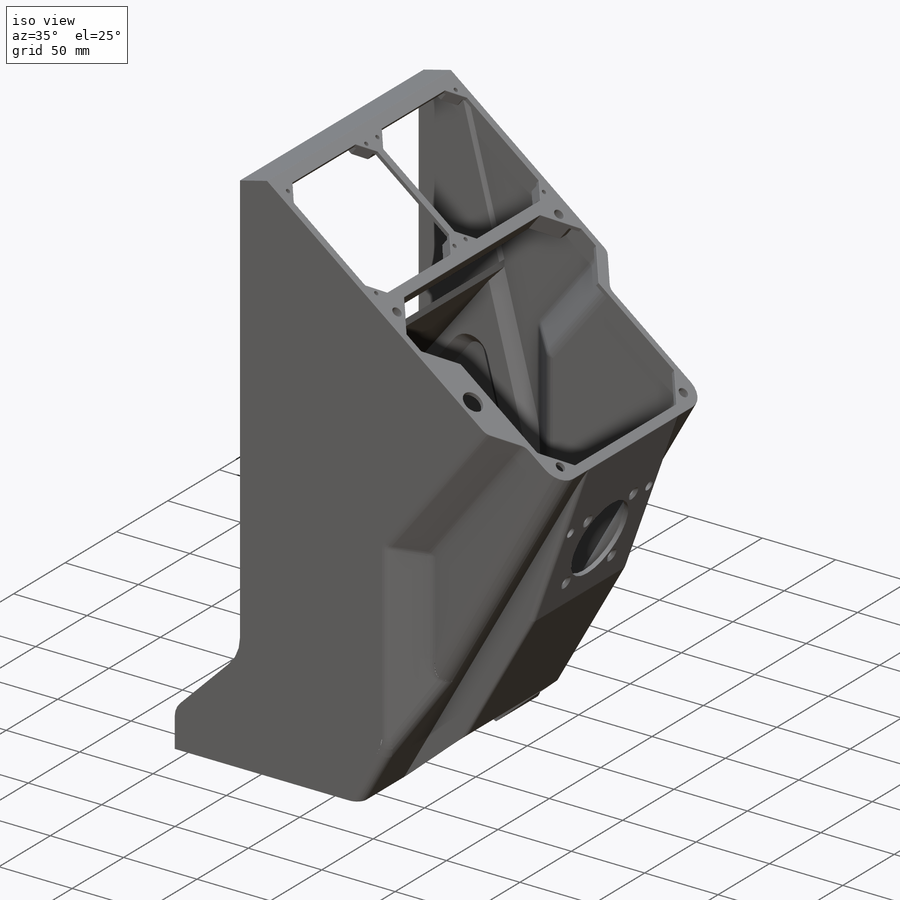
[diagram: iso view]
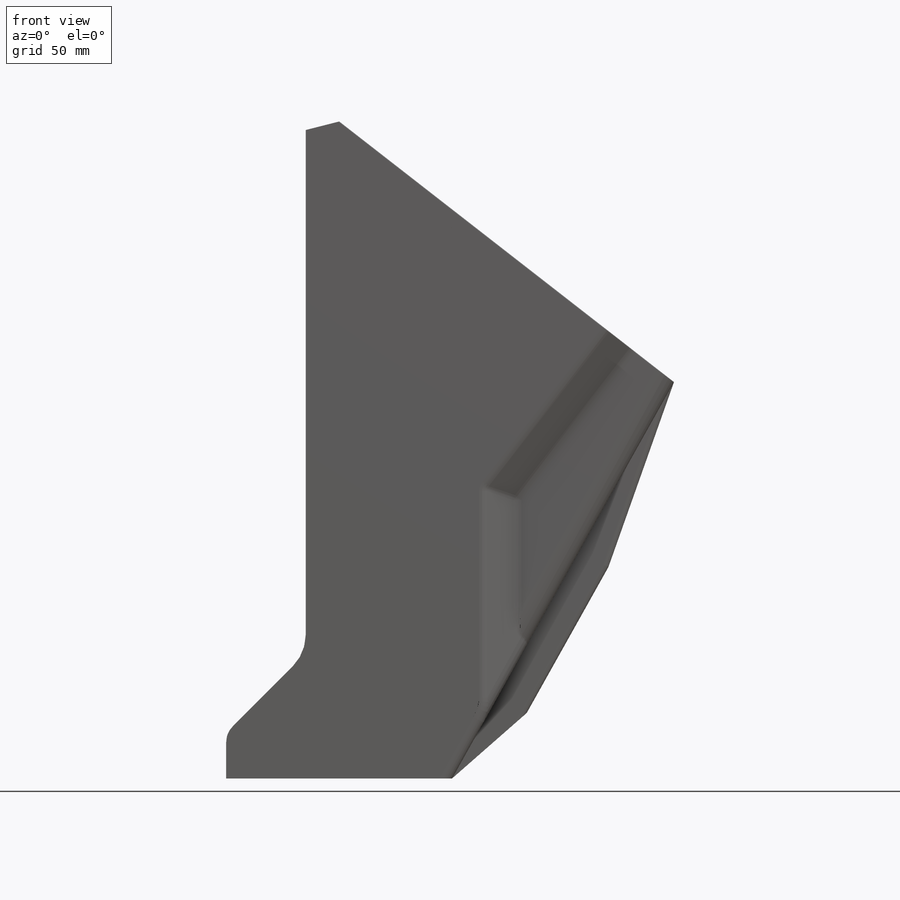
[diagram: front view]
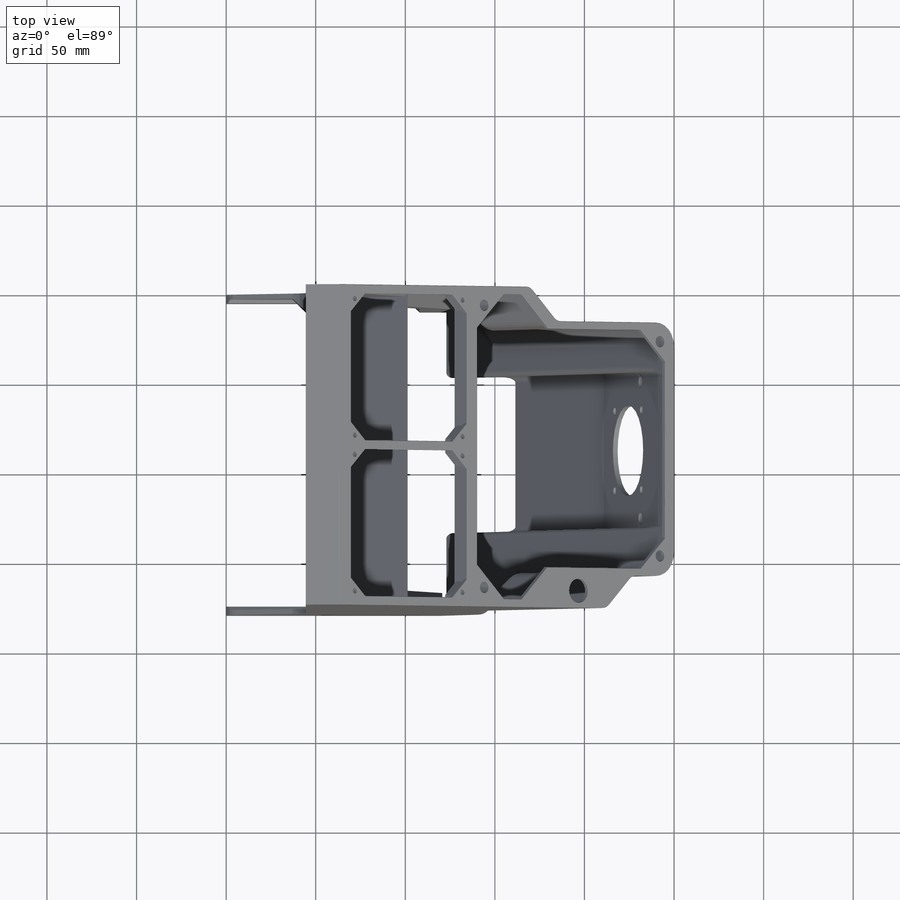
[diagram: top view]
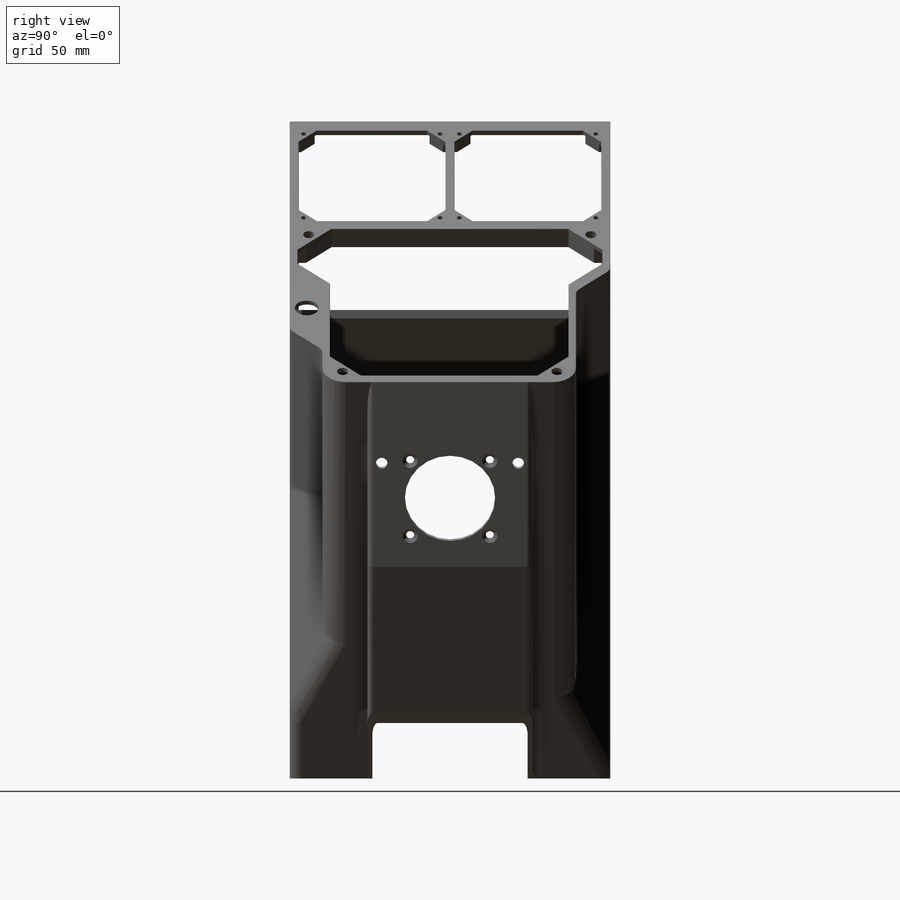
[diagram: right view]
SOLIDWORKS PART (.sldprt)
format: sldprt  version: not decoded by parser v0  size: 1,691,648 bytes
history: native  units: mm
features: sketch x31, extrude x13, chamfer x12, fillet x12, cut_extrude x9, hole x3, material x1, plane x1, shell x1 (+16 scaffold rows collapsed)
feature tree (99):
  scaffold x16  (default folders/planes/origin — collapsed)
  material  "Material <not specified>"
  sketch  "Sketch1"  dims[c1.D1=126.0983mm c1.D2=361.95mm c1.D3=44.45mm c1.D4=19.3294mm c1.D5=361.95mm c2.D5=104.25deg c2.D6=236.7153mm c2.D7=~138.595227mm c3.D7=127.85deg c3.D9=126.0983mm c4.D9=45.0deg c4.D8=25.4mm]
  extrude  "Extrude1"  Depth=178.8414mm
  sketch  "Sketch2"  dims[D1=46.1391mm D2=46.1391mm]
  plane  "Plane1"
  sketch  "Sketch3"  dims[c1.D2=18.161mm c1.D1=31.75mm c2.D1=138.75deg c2.D3=18.161mm c3.D3=~0.752419deg c4.D3=~31.284249mm c4.D4=107.95mm c4.D1=31.75mm c5.D3=18.4912mm]
  extrude  "Extrude2"  Depth=46.1391mm
  sketch  "Sketch4"  dims[c1.D2=47.6631mm c1.D3=~29.278737mm c2.D3=90.0deg c2.D1=31.75mm]
  cut_extrude  "Extrude3"  Depth=18.288mm
  sketch  "Sketch5"  dims[c1.D1=101.6mm c1.D2=~43.976142mm c2.D2=90.0deg]
  cut_extrude  "Extrude4"  Depth=19.05mm
  chamfer  "Chamfer1"  Distance=19.05mm Angle=45deg
  chamfer  "Chamfer2"  Distance=18.288mm Angle=45deg
  fillet  "Fillet1"  Radius=12.7mm
  fillet  "Fillet3"  Radius=6.35mm
  fillet  "Fillet4"  Radius=6.35mm
  fillet  "Fillet5"  Radius=25.4mm
  fillet  "Fillet6"  Radius=12.7mm
  shell  "Shell1"  Thickness=2.794mm
  sketch  "Sketch6"  dims[c1.D6=~17.22374mm c1.D7=~17.22374mm c1.D10=18.8849mm c2.D10=~50.233172deg c3.D10=18.8849mm c4.D10=45.0deg c4.D8=6.2103mm c4.D1=6.2103mm c4.D2=4.2291mm c4.D3=4.1402mm c4.D4=132.8801mm c4.D5=4.3942mm c5.D8=3.2004mm c5.D9=7.3914mm]
  cut_extrude  "Extrude5"  [1 undecoded]
  sketch  "Sketch8"  dims[D1=7.3787mm D2=81.915mm D3=2.54mm D4=2.54mm D5=81.915mm D6=81.915mm]
  cut_extrude  "Extrude6"  [1 undecoded]
  chamfer  "Chamfer3"  Distance=10.16mm Angle=45deg
  sketch  "Sketch10"  dims[D1=6.0579mm D2=20.32mm]
  extrude  "Extrude7"  Depth=12.9159mm
  sketch  "Sketch11"  dims[D1=46.7106mm]
  extrude  "Extrude8"  Depth=2.8956mm
  sketch  "Sketch13"
  cut_extrude  "Extrude9"  [1 undecoded]
  sketch  "Sketch14"
  cut_extrude  "Extrude10"  [1 undecoded]
  sketch  "Sketch15"  dims[D1=5.3848mm D2=5.3848mm]
  extrude  "Extrude11"  Depth=8.3058mm
  sketch  "Sketch17"  dims[D1=25.4mm]
  extrude  "Extrude12"  Depth=4.7752mm
  chamfer  "Chamfer4"  Distance=1.905mm Angle=45deg
  sketch  "Sketch20"  dims[D1=25.4mm]
  extrude  "Extrude14"  Depth=4.7752mm
  sketch  "Sketch21"  dims[D1=0.0mm]
  extrude  "Extrude15"  [1 undecoded]
  chamfer  "Chamfer5"  Distance=1.905mm Angle=45deg
  sketch  "Sketch22"  dims[c1.D3=~76.342702mm c2.D3=42.5deg c3.D3=3.6322mm c3.D6=12.7mm c3.D5=19.9644mm c3.D1=12.7mm c3.D2=50.8mm c3.D4=152.4mm c4.D5=152.4mm c4.D3=7.112mm]
  extrude  "Extrude16"  Depth=10.0584mm
  fillet  "Fillet7"  Radius=12.7mm
  chamfer  "Chamfer6"  Distance=7.2644mm Angle=45deg
  chamfer  "Chamfer11"  Distance=7.2644mm Angle=45deg
  chamfer  "Chamfer7"  Distance=5.2832mm Angle=45deg
  sketch  "Sketch24"  dims[c1.D2=~20.008172mm c1.D1=0.0mm c2.D2=12.7mm]
  extrude  "Extrude18"  Depth=10.0584mm
  fillet  "Fillet8"  Radius=12.7mm
  chamfer  "Chamfer12"  Distance=7.2644mm Angle=45deg
  chamfer  "Chamfer13"  Distance=5.2832mm Angle=45deg
  sketch  "Sketch26"  dims[D1=0.0mm D2=0.0mm D3=0.0mm]
  extrude  "Extrude19"  [1 undecoded]
  sketch  "Sketch25"
  extrude  "Extrude20"  Depth=5.0165mm
  chamfer  "Chamfer14"  Distance=2.2225mm Angle=45deg
  sketch  "Sketch27"  dims[D1=0.0mm]
  extrude  "Extrude21"  Depth=5.0165mm
  chamfer  "Chamfer15"  Distance=2.2225mm Angle=45deg
  sketch  "Sketch28"  dims[c1.D5=9.6774mm c1.D6=134.0104mm c1.D1=38.1mm c1.D2=38.1mm c1.D3=38.1mm c1.D4=38.1mm c2.D5=5.08mm c2.D6=5.08mm c2.D7=59.817mm c2.D8=59.817mm c2.D9=9.6774mm c2.D10=78.74mm c2.D11=78.74mm c2.D12=134.0104mm]
  hole  "#6-32 Tapped Hole1"  Diameter=2.7051mm Depth=8.3058mm
  sketch  "3DSketch1"
  sketch  "Sketch29"  dims[hole-wizard template sketch: 60 standard entries collapsed; hole parameters kept: c18.Thru Tap Drill Depth=8.3058mm]
  sketch  "Sketch30"  dims[c1.D3=13.2334mm c1.D2=67.3608mm c1.D1=9.525mm c2.D2=67.3608mm]
  cut_extrude  "Extrude22"  [1 undecoded]
  sketch  "Sketch31"  dims[D1=6.096mm]
  cut_extrude  "Extrude23"  [1 undecoded]
  sketch  "Sketch33"  dims[D2=50.4444mm D1=43.688mm]
  cut_extrude  "Extrude25"  [1 undecoded]
  sketch  "Sketch34"  dims[D1=22.225mm D2=22.225mm D3=22.225mm D4=22.225mm D5=48.1584mm D6=38.1mm D7=38.1mm]
  hole  "CSK for #8 Flat Head Machine Screw (100)1"  Diameter=4.4958mm Depth=2.794mm
  sketch  "3DSketch2"
  sketch  "Sketch35"  dims[hole-wizard template sketch: 55 standard entries collapsed; hole parameters kept: c17.Thru Hole Depth=2.794mm c17.Near C'Sink Dia.=8.4328mm c17.D4=~3.666174mm c17.Near C'Sink Angle=100.0deg]
  hole  "1/4 (0.25) Diameter Hole1"  Diameter=6.4516mm Depth=2.794mm
  sketch  "3DSketch3"
  sketch  "Sketch36"  dims[hole-wizard template sketch: 59 standard entries collapsed; hole parameters kept: c18.Thru Hole Dia.=6.4516mm c18.Thru Hole Depth=2.794mm]
  fillet  "Fillet9"  Radius=3.175mm
  fillet  "Fillet11"  Radius=3.175mm
  fillet  "Fillet12"  Radius=3.175mm
  fillet  "Fillet13"  Radius=3.175mm
  fillet  "Fillet10"  Radius=0.396875mm
decode coverage: 66 of 81 modeling features carry decoded parameters
note: ~ marks probable driven/reference dimensions
note: 9 parameter values undecoded
summary: no parameter record found for 9 features
note: suppression state not decoded; provenance and decode notes live in map.json
